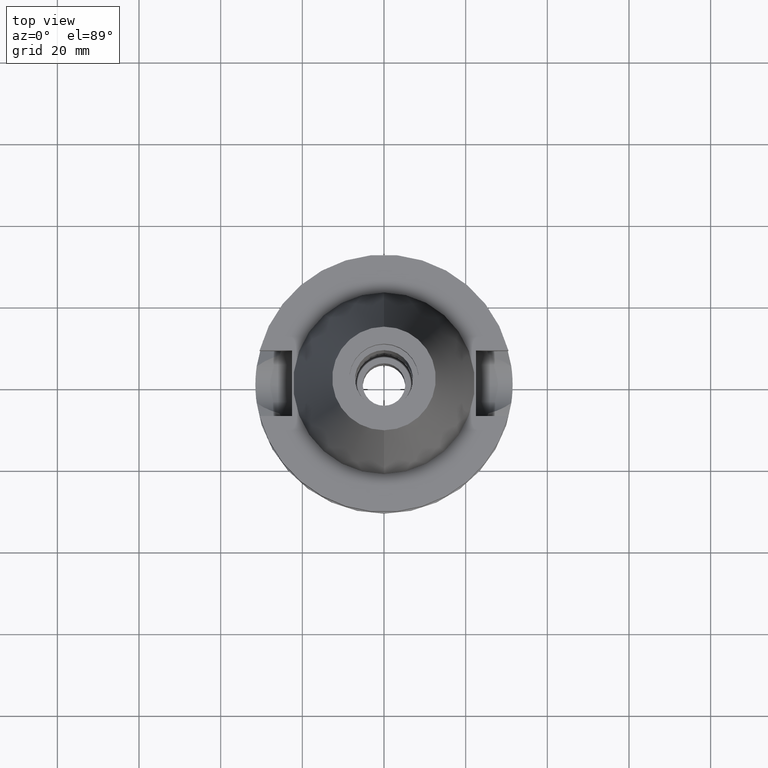
[diagram: clean part render]
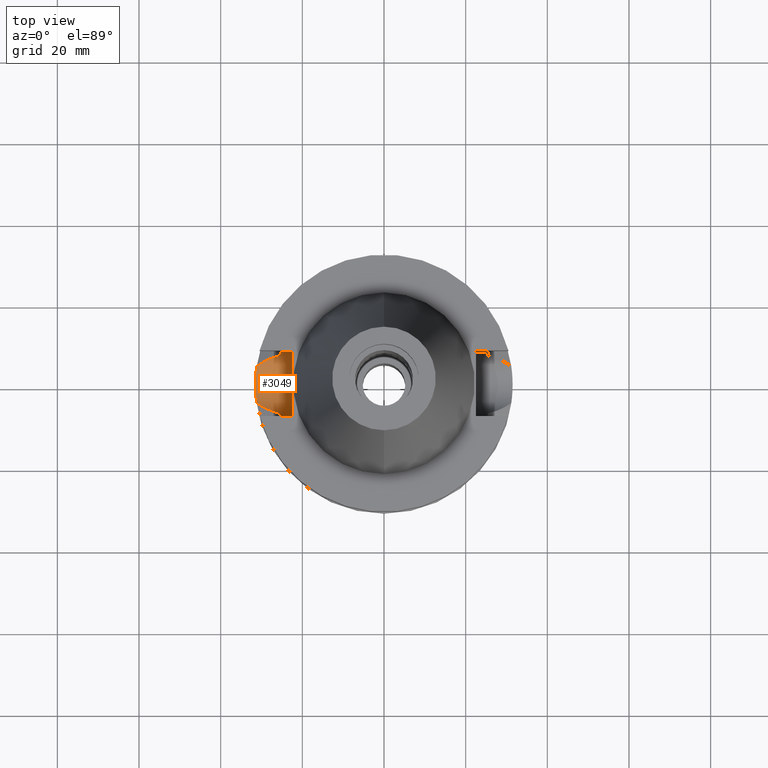
[diagram: same view with one face highlighted and labeled with its STEP entity id]
A machine part, top view. The second image highlights one B-rep face of the part: STEP entity #3049.
In plain terms, the highlighted cylindrical surface (edge-blend (fillet) strip) has radius 8.05 mm, axis along (-1, 0, 0).
Its self-contained STEP definition (entity closure, byte-faithful):
#35 = ORIENTED_EDGE ( 'NONE', *, *, #3052, .T. ) ;
#67 = CARTESIAN_POINT ( 'NONE',  ( -27.47065402139822154, -6.468757675472927460, -19.74146199464955487 ) ) ;
#128 = VERTEX_POINT ( 'NONE', #2100 ) ;
#187 = ORIENTED_EDGE ( 'NONE', *, *, #1239, .T. ) ;
#212 = CARTESIAN_POINT ( 'NONE',  ( -27.56832155853851418, 6.431360717030734087, -19.79188796920927373 ) ) ;
#221 = CARTESIAN_POINT ( 'NONE',  ( -31.17899877608999759, -4.485536235554000051, -21.63449434733000132 ) ) ;
#241 = CARTESIAN_POINT ( 'NONE',  ( -25.28050147970205330, 7.946982733726524195, -16.24437200640843315 ) ) ;
#256 = CARTESIAN_POINT ( 'NONE',  ( -27.99705806420217158, 6.260502183034696522, -20.01120139630721795 ) ) ;
#268 = CARTESIAN_POINT ( 'NONE',  ( -27.80261133186566980, 6.340080601829415130, -19.91176336261907664 ) ) ;
#288 = EDGE_CURVE ( 'NONE', #1753, #1698, #891, .T. ) ;
#307 = CARTESIAN_POINT ( 'NONE',  ( -31.50000000000000000, 0.0000000000000000000, -14.94999999999999929 ) ) ;
#339 = CARTESIAN_POINT ( 'NONE',  ( -25.24772266958000344, 8.050000000000000711, -14.94999999999999929 ) ) ;
#347 = EDGE_CURVE ( 'NONE', #884, #2229, #2501, .T. ) ;
#375 = CARTESIAN_POINT ( 'NONE',  ( -31.39942175770065447, 2.522462273896720397, -22.59713453206253675 ) ) ;
#394 = DIRECTION ( 'NONE',  ( 1.000000000000000000, 0.0000000000000000000, 0.0000000000000000000 ) ) ;
#398 = CARTESIAN_POINT ( 'NONE',  ( -25.53175183775000079, 7.097862220092999941, -18.74774300138999905 ) ) ;
#472 = CARTESIAN_POINT ( 'NONE',  ( -25.27269391207093463, -7.973288729732005642, -16.24537813257536811 ) ) ;
#475 = CARTESIAN_POINT ( 'NONE',  ( -30.47175200557827068, -5.022102185217673487, -21.27443928782956561 ) ) ;
#529 = DIRECTION ( 'NONE',  ( -1.000000000000000000, 1.551559937893000172E-14, 1.680856599384000216E-14 ) ) ;
#560 = CARTESIAN_POINT ( 'NONE',  ( -31.38373212837024795, 2.710341632984773153, -22.53260975833440938 ) ) ;
#579 = VERTEX_POINT ( 'NONE', #398 ) ;
#605 = CARTESIAN_POINT ( 'NONE',  ( -31.27028647256796390, -3.801301904420796962, -22.04879116226245728 ) ) ;
#684 = CARTESIAN_POINT ( 'NONE',  ( -25.33293017119234847, -7.777974374871667429, -17.02562462713745361 ) ) ;
#688 = CARTESIAN_POINT ( 'NONE',  ( -26.07040359068502866, -6.949796083382365097, -19.02447395380931283 ) ) ;
#694 = LINE ( 'NONE', #960, #1216 ) ;
#704 = CARTESIAN_POINT ( 'NONE',  ( -27.46632154445573804, 6.470115555465794088, -19.73968472472500224 ) ) ;
#708 = CARTESIAN_POINT ( 'NONE',  ( -25.24772266957999634, -8.049999999999997158, -15.58999736273356085 ) ) ;
#713 = CARTESIAN_POINT ( 'NONE',  ( -27.52057603150045040, -6.449753868271356438, -19.76696955289208546 ) ) ;
#724 = B_SPLINE_CURVE_WITH_KNOTS ( 'NONE', 3,
 ( #2957, #2766, #1557, #605, #1512, #1999, #3001, #2063, #1578, #2278, #1102, #375, #560, #2012, #801, #2291, #864, #2248 ),
 .UNSPECIFIED., .F., .F.,
 ( 4, 2, 2, 2, 2, 2, 2, 2, 4 ),
 ( 0.0000000000000000000, 0.06249999999999976408, 0.1249999999999996392, 0.2499999999999997224, 0.5000000000000001110, 0.7500000000000004441, 0.8125000000000004441, 0.8750000000000004441, 1.000000000000000000 ),
 .UNSPECIFIED. ) ;
#727 = CARTESIAN_POINT ( 'NONE',  ( -25.32419709970849198, -7.806318959900148791, -16.91578803901756345 ) ) ;
#767 = CARTESIAN_POINT ( 'NONE',  ( -27.36246532912323204, 6.509127274254973727, -19.68652459502293794 ) ) ;
#798 = CARTESIAN_POINT ( 'NONE',  ( -22.50000000000000000, 8.050000000000000711, -14.94999999999999929 ) ) ;
#801 = CARTESIAN_POINT ( 'NONE',  ( -31.33117692260842801, 3.261988001766285450, -22.31220474935663489 ) ) ;
#864 = CARTESIAN_POINT ( 'NONE',  ( -31.22685090768407079, 4.152915680507867968, -21.85769470847166573 ) ) ;
#884 = VERTEX_POINT ( 'NONE', #2812 ) ;
#891 = B_SPLINE_CURVE_WITH_KNOTS ( 'NONE', 3,
 ( #3106, #936, #949, #1911, #1452, #1424, #1944, #684, #2377, #2865, #727, #472, #708, #1212 ),
 .UNSPECIFIED., .F., .F.,
 ( 4, 2, 2, 1, 1, 2, 2, 4 ),
 ( 0.0000000000000000000, 0.2499999999999754641, 0.3749999999999630851, 0.4374999999999556466, 0.4687499999999517608, 0.4843749999999512057, 0.4999999999999505951, 1.000000000000000000 ),
 .UNSPECIFIED. ) ;
#936 = CARTESIAN_POINT ( 'NONE',  ( -25.48482038766597313, -7.266679548433788050, -18.43222872448825100 ) ) ;
#943 = CARTESIAN_POINT ( 'NONE',  ( -25.25396625246039406, 8.030896711162142765, -15.59378553529055900 ) ) ;
#949 = CARTESIAN_POINT ( 'NONE',  ( -25.44392837589918699, -7.408239565059870024, -18.11709494172737323 ) ) ;
#960 = CARTESIAN_POINT ( 'NONE',  ( -22.50000000000000000, -8.050000000000000711, -14.94999999999999929 ) ) ;
#967 = CARTESIAN_POINT ( 'NONE',  ( -27.52933886014979947, -6.446408567850159699, -19.77144664971403643 ) ) ;
#973 = CARTESIAN_POINT ( 'NONE',  ( -25.53175183775000079, 7.097862220092999941, -18.74774300138999905 ) ) ;
#978 = VECTOR ( 'NONE', #1302, 1000.000000000000000 ) ;
#987 = CARTESIAN_POINT ( 'NONE',  ( -28.07183645631407032, -6.231961779058677209, -20.04870173871303507 ) ) ;
#990 = CARTESIAN_POINT ( 'NONE',  ( -26.19559971814278398, 6.915381813267166500, -19.08879314223081280 ) ) ;
#1003 = CARTESIAN_POINT ( 'NONE',  ( -29.08123810488426031, 5.770489561318040472, -20.56513768639720396 ) ) ;
#1004 = B_SPLINE_CURVE_WITH_KNOTS ( 'NONE', 3,
 ( #2874, #2173, #1433, #1730, #1176, #2690, #1003, #1670, #1480, #256, #268, #212, #704, #1711, #767, #1237, #990, #2918 ),
 .UNSPECIFIED., .F., .F.,
 ( 4, 2, 2, 2, 2, 1, 1, 2, 2, 4 ),
 ( 0.0000000000000000000, 0.2500000000000068279, 0.3750000000000101030, 0.5000000000000134337, 0.6250000000000167644, 0.6875000000000174305, 0.7187500000000176525, 0.7343750000000175415, 0.7500000000000173195, 1.000000000000000000 ),
 .UNSPECIFIED. ) ;
#1059 = ORIENTED_EDGE ( 'NONE', *, *, #1690, .F. ) ;
#1102 = CARTESIAN_POINT ( 'NONE',  ( -31.47014091591460883, 1.569800303106025252, -22.88544884417187220 ) ) ;
#1176 = CARTESIAN_POINT ( 'NONE',  ( -29.72311056866762868, 5.432252981373226319, -20.89263474734920578 ) ) ;
#1187 = CARTESIAN_POINT ( 'NONE',  ( -29.60898557402410702, -5.537317144311764139, -20.83455795139698097 ) ) ;
#1191 = CARTESIAN_POINT ( 'NONE',  ( -25.24772266958000344, 8.050000000000000711, -14.94999999999999929 ) ) ;
#1206 = CARTESIAN_POINT ( 'NONE',  ( -25.36818832151706005, 7.663695285312909000, -17.48840541837265405 ) ) ;
#1212 = CARTESIAN_POINT ( 'NONE',  ( -25.24772266958000344, -8.050000000000000711, -14.94999999999999929 ) ) ;
#1216 = VECTOR ( 'NONE', #529, 1000.000000000000000 ) ;
#1237 = CARTESIAN_POINT ( 'NONE',  ( -26.79502112116745849, 6.719309164191811234, -19.39602425501171723 ) ) ;
#1239 = EDGE_CURVE ( 'NONE', #2824, #2229, #1516, .T. ) ;
#1288 = CARTESIAN_POINT ( 'NONE',  ( -25.53175183775000079, -7.097862220092999941, -18.74774300138999905 ) ) ;
#1302 = DIRECTION ( 'NONE',  ( 1.000000000000000000, 1.486911607147000170E-14, -1.680856599384000216E-14 ) ) ;
#1411 = CARTESIAN_POINT ( 'NONE',  ( -27.17357340037822411, -6.578921279836705160, -19.58958909798310088 ) ) ;
#1424 = CARTESIAN_POINT ( 'NONE',  ( -25.35412323723021899, -7.708830947932256983, -17.27007949472962167 ) ) ;
#1429 = CYLINDRICAL_SURFACE ( 'NONE', #3019, 8.050000000000000711 ) ;
#1433 = CARTESIAN_POINT ( 'NONE',  ( -30.50821301824432652, 4.965966688458536282, -21.29288543945265033 ) ) ;
#1447 = EDGE_LOOP ( 'NONE', ( #1984, #3016, #187, #1792, #1639, #1605, #1059, #35 ) ) ;
#1452 = CARTESIAN_POINT ( 'NONE',  ( -25.37573308857943744, -7.637710303739495110, -17.49818662950806569 ) ) ;
#1480 = CARTESIAN_POINT ( 'NONE',  ( -28.37742718935392716, 6.099878924906184885, -20.20566105898982912 ) ) ;
#1512 = CARTESIAN_POINT ( 'NONE',  ( -31.29155434613432263, -3.622344445574516403, -22.14169315534166316 ) ) ;
#1516 = CIRCLE ( 'NONE', #2074, 8.050000000000000711 ) ;
#1557 = CARTESIAN_POINT ( 'NONE',  ( -31.22605527071346643, -4.148998008600059961, -21.85135399485417196 ) ) ;
#1578 = CARTESIAN_POINT ( 'NONE',  ( -31.50001712310213620, -0.7926383445691687069, -23.00007365985223018 ) ) ;
#1605 = ORIENTED_EDGE ( 'NONE', *, *, #2599, .F. ) ;
#1639 = ORIENTED_EDGE ( 'NONE', *, *, #2643, .T. ) ;
#1666 = FACE_OUTER_BOUND ( 'NONE', #1447, .T. ) ;
#1670 = CARTESIAN_POINT ( 'NONE',  ( -28.61963866762048880, 5.990844859111962073, -20.32941229452001153 ) ) ;
#1682 = CARTESIAN_POINT ( 'NONE',  ( -25.24772266958000344, 8.050000000000000711, -15.27000344021509370 ) ) ;
#1690 = EDGE_CURVE ( 'NONE', #2362, #128, #724, .T. ) ;
#1698 = VERTEX_POINT ( 'NONE', #1765 ) ;
#1708 = CARTESIAN_POINT ( 'NONE',  ( -27.50632344154401565, -6.455186114388115293, -19.75968739767788662 ) ) ;
#1711 = CARTESIAN_POINT ( 'NONE',  ( -27.39796854712878371, 6.495867531568975117, -19.70469854487325989 ) ) ;
#1730 = CARTESIAN_POINT ( 'NONE',  ( -29.92597539203552515, 5.316717710711510669, -20.99608060023409095 ) ) ;
#1753 = VERTEX_POINT ( 'NONE', #1288 ) ;
#1765 = CARTESIAN_POINT ( 'NONE',  ( -25.24772266958000344, -8.050000000000000711, -14.94999999999999929 ) ) ;
#1792 = ORIENTED_EDGE ( 'NONE', *, *, #347, .F. ) ;
#1801 = DIRECTION ( 'NONE',  ( 0.0000000000000000000, -1.000000000000000000, 0.0000000000000000000 ) ) ;
#1904 = CARTESIAN_POINT ( 'NONE',  ( -25.30215890781841992, 7.877570599498848303, -16.61088255777515243 ) ) ;
#1911 = CARTESIAN_POINT ( 'NONE',  ( -25.39164951572487894, -7.584807667336962211, -17.65197957159464082 ) ) ;
#1944 = CARTESIAN_POINT ( 'NONE',  ( -25.34388450889786526, -7.742333382928201502, -17.15666984720025923 ) ) ;
#1984 = ORIENTED_EDGE ( 'NONE', *, *, #288, .T. ) ;
#1999 = CARTESIAN_POINT ( 'NONE',  ( -31.35088811482348348, -3.082665263967355962, -22.39703123798120643 ) ) ;
#2012 = CARTESIAN_POINT ( 'NONE',  ( -31.34953802612839979, 3.080756339134785193, -22.38983638826563549 ) ) ;
#2029 = EDGE_CURVE ( 'NONE', #2824, #1698, #694, .T. ) ;
#2038 = CARTESIAN_POINT ( 'NONE',  ( -22.50000000000000000, 0.0000000000000000000, -14.94999999999999929 ) ) ;
#2063 = CARTESIAN_POINT ( 'NONE',  ( -31.47006483083458050, -1.570420134126574441, -22.88512809629088096 ) ) ;
#2074 = AXIS2_PLACEMENT_3D ( 'NONE', #2038, #394, #1801 ) ;
#2100 = CARTESIAN_POINT ( 'NONE',  ( -31.17899877608999759, 4.485536235554000051, -21.63449434733000132 ) ) ;
#2148 = B_SPLINE_CURVE_WITH_KNOTS ( 'NONE', 3,
 ( #221, #475, #1187, #2185, #987, #3099, #2159, #2236, #967, #713, #1708, #67, #2622, #1411, #2867, #688, #2363 ),
 .UNSPECIFIED., .F., .F.,
 ( 4, 2, 2, 1, 2, 2, 1, 1, 2, 4 ),
 ( 0.0000000000000000000, 0.5000000000000196509, 0.6250000000000249800, 0.6562500000000264233, 0.6640625000000263123, 0.6679687500000267564, 0.6718750000000273115, 0.6875000000000259792, 0.7500000000000208722, 1.000000000000000000 ),
 .UNSPECIFIED. ) ;
#2159 = CARTESIAN_POINT ( 'NONE',  ( -27.64293414425125661, -6.402789111706371550, -19.82948868517129881 ) ) ;
#2162 = CARTESIAN_POINT ( 'NONE',  ( -25.31206084004278267, 7.845614529399052905, -16.75329855851851235 ) ) ;
#2173 = CARTESIAN_POINT ( 'NONE',  ( -30.86121335038591695, 4.726630074142183169, -21.47271170635015380 ) ) ;
#2185 = CARTESIAN_POINT ( 'NONE',  ( -28.33612795827837161, -6.118812149404362799, -20.18384185807175513 ) ) ;
#2199 = CARTESIAN_POINT ( 'NONE',  ( -25.29454954118293131, 7.902007388340077654, -16.48871296865240410 ) ) ;
#2229 = VERTEX_POINT ( 'NONE', #798 ) ;
#2236 = CARTESIAN_POINT ( 'NONE',  ( -27.55559696648158408, -6.436359641193128311, -19.78486291925455731 ) ) ;
#2248 = CARTESIAN_POINT ( 'NONE',  ( -31.17899877608999759, 4.485536235554000051, -21.63449434733000132 ) ) ;
#2275 = CARTESIAN_POINT ( 'NONE',  ( -31.17899877608999759, -4.485536235554000051, -21.63449434733000132 ) ) ;
#2278 = CARTESIAN_POINT ( 'NONE',  ( -31.49998286221021004, 0.7939987288855204772, -22.99992628266776862 ) ) ;
#2291 = CARTESIAN_POINT ( 'NONE',  ( -31.27141562376842288, 3.805445729920239106, -22.05502235412103573 ) ) ;
#2362 = VERTEX_POINT ( 'NONE', #2275 ) ;
#2363 = CARTESIAN_POINT ( 'NONE',  ( -25.53175183775000079, -7.097862220092999941, -18.74774300138999905 ) ) ;
#2377 = CARTESIAN_POINT ( 'NONE',  ( -25.32844777903620681, -7.792527725354048584, -16.96974754110885897 ) ) ;
#2382 = DIRECTION ( 'NONE',  ( 0.0000000000000000000, 0.0000000000000000000, -1.000000000000000000 ) ) ;
#2401 = CARTESIAN_POINT ( 'NONE',  ( -25.31954826170012396, 7.821386849065740776, -16.85495274080560435 ) ) ;
#2501 = LINE ( 'NONE', #339, #978 ) ;
#2599 = EDGE_CURVE ( 'NONE', #128, #579, #1004, .T. ) ;
#2622 = CARTESIAN_POINT ( 'NONE',  ( -27.32004560643614965, -6.525566753754934446, -19.66449489164223507 ) ) ;
#2643 = EDGE_CURVE ( 'NONE', #884, #579, #2989, .T. ) ;
#2661 = CARTESIAN_POINT ( 'NONE',  ( -25.27269700110156236, 7.971767412703377964, -16.08147680840639993 ) ) ;
#2690 = CARTESIAN_POINT ( 'NONE',  ( -29.29987634796986740, 5.659552168242428571, -20.67672122862197526 ) ) ;
#2706 = CARTESIAN_POINT ( 'NONE',  ( -25.43789037938550379, 7.435491690476241367, -18.11672414061894898 ) ) ;
#2747 = CARTESIAN_POINT ( 'NONE',  ( -22.50000000000000000, -8.050000000000000711, -14.94999999999999929 ) ) ;
#2766 = CARTESIAN_POINT ( 'NONE',  ( -31.20293914673900915, -4.319126524894972619, -21.74616125111140974 ) ) ;
#2812 = CARTESIAN_POINT ( 'NONE',  ( -25.24772266958000344, 8.050000000000000711, -14.94999999999999929 ) ) ;
#2824 = VERTEX_POINT ( 'NONE', #2747 ) ;
#2859 = CARTESIAN_POINT ( 'NONE',  ( -25.31652402624244047, 7.831177078177598005, -16.81429685341876379 ) ) ;
#2865 = CARTESIAN_POINT ( 'NONE',  ( -25.32550670071060850, -7.802071535306276395, -16.93256103013005287 ) ) ;
#2867 = CARTESIAN_POINT ( 'NONE',  ( -26.57797059093130798, -6.789678982130635809, -19.28481655784913329 ) ) ;
#2874 = CARTESIAN_POINT ( 'NONE',  ( -31.17899877608999759, 4.485536235554000051, -21.63449434733000132 ) ) ;
#2918 = CARTESIAN_POINT ( 'NONE',  ( -25.53175183775000079, 7.097862220092999941, -18.74774300138999905 ) ) ;
#2957 = CARTESIAN_POINT ( 'NONE',  ( -31.17899877608999759, -4.485536235554000051, -21.63449434733000132 ) ) ;
#2989 = B_SPLINE_CURVE_WITH_KNOTS ( 'NONE', 3,
 ( #1191, #1682, #943, #2661, #241, #2199, #1904, #2162, #2859, #2401, #3114, #1206, #2706, #973 ),
 .UNSPECIFIED., .F., .F.,
 ( 4, 2, 2, 1, 1, 2, 2, 4 ),
 ( 0.0000000000000000000, 0.2500000000000029421, 0.3750000000000057176, 0.4375000000000057732, 0.4687500000000042744, 0.4843750000000034417, 0.5000000000000025535, 1.000000000000000000 ),
 .UNSPECIFIED. ) ;
#3001 = CARTESIAN_POINT ( 'NONE',  ( -31.38545342354494849, -2.710832595742836304, -22.54018087763053302 ) ) ;
#3016 = ORIENTED_EDGE ( 'NONE', *, *, #2029, .F. ) ;
#3019 = AXIS2_PLACEMENT_3D ( 'NONE', #307, #3120, #2382 ) ;
#3049 = ADVANCED_FACE ( 'NONE', ( #1666 ), #1429, .F. ) ;
#3052 = EDGE_CURVE ( 'NONE', #2362, #1753, #2148, .T. ) ;
#3099 = CARTESIAN_POINT ( 'NONE',  ( -27.72932210533976871, -6.368851090647809521, -19.87363800709438522 ) ) ;
#3106 = CARTESIAN_POINT ( 'NONE',  ( -25.53175183775000079, -7.097862220092999941, -18.74774300138999905 ) ) ;
#3114 = CARTESIAN_POINT ( 'NONE',  ( -25.32122245610180400, 7.815962707351904015, -16.87706809357090165 ) ) ;
#3120 = DIRECTION ( 'NONE',  ( -1.000000000000000000, 0.0000000000000000000, 0.0000000000000000000 ) ) ;